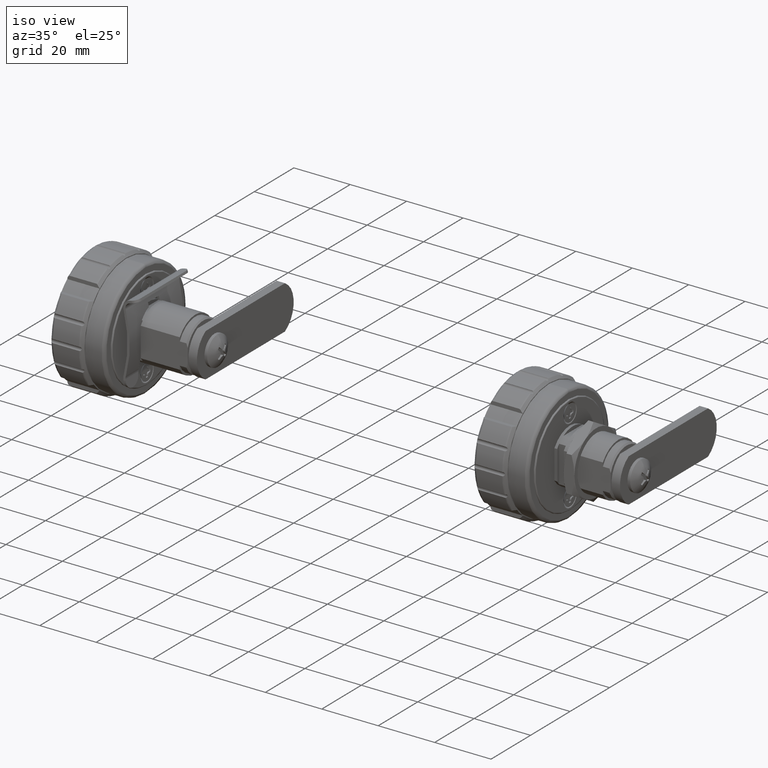
[diagram: clean part render]
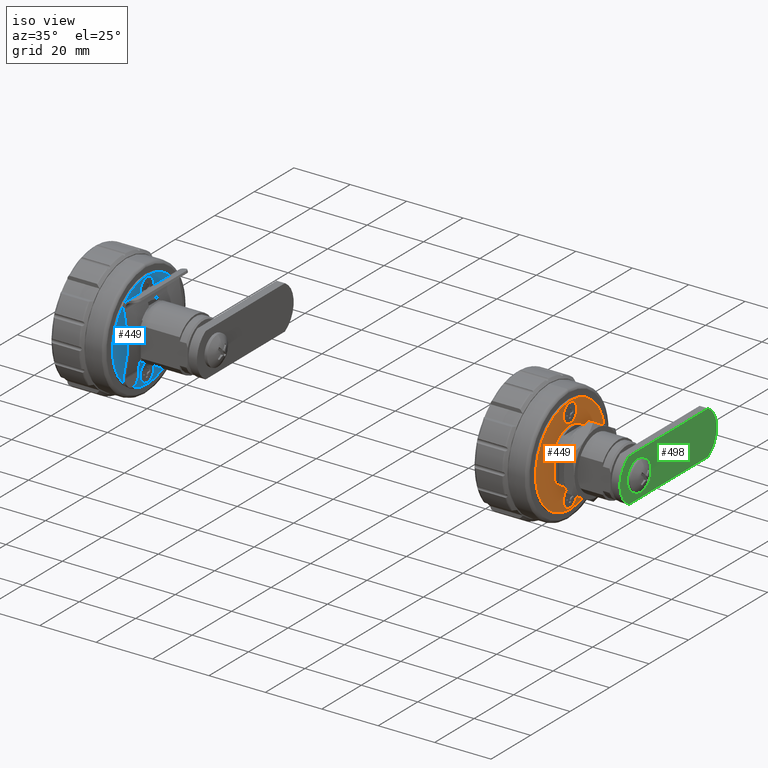
[diagram: same view with three faces highlighted in distinct colors, each labeled with its STEP entity id]
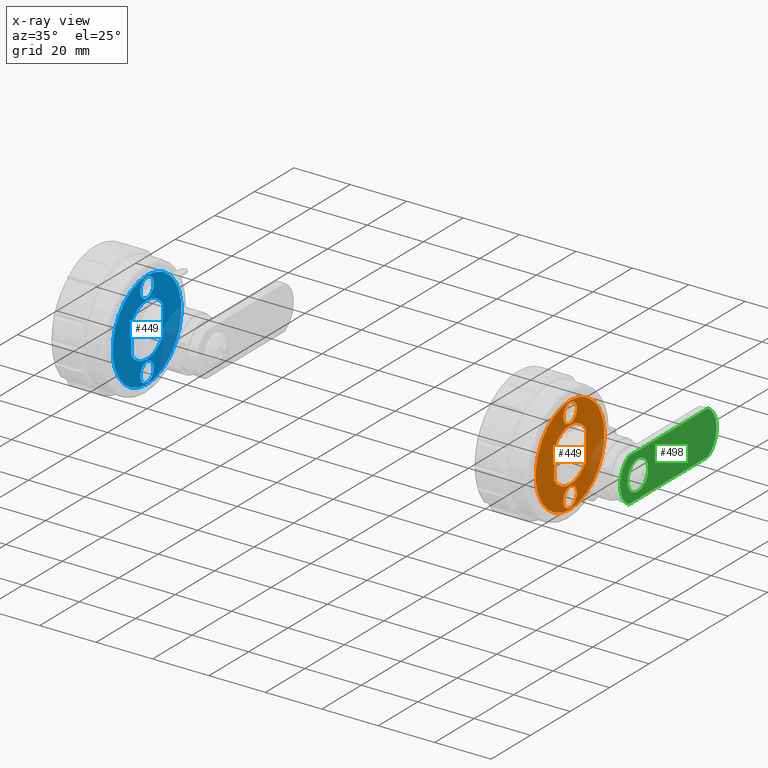
[diagram: x-ray of the same camera — body ghosted, the three highlighted faces saturated]
A machine part, iso view with three faces highlighted in distinct colors.
The next image is the same camera in x-ray (body ghosted, the three faces saturated) — at least one of them is partly hidden behind the body in this view.
Their STEP definitions:

[orange] entity #449 — the highlighted planar face has unit normal (-1, 0, 0).
#449=ADVANCED_FACE('',(#2583,#2584,#2585,#2586),#2582,.F.);
#2582=PLANE('',#5159);
#2583=FACE_OUTER_BOUND('',#5160,.T.);
#2584=FACE_BOUND('',#5161,.T.);
#2585=FACE_BOUND('',#5162,.T.);
#2586=FACE_BOUND('',#5163,.T.);
#5156=CARTESIAN_POINT('',(0.00000000000E+00,-3.62691439106E+01,2.26850000000E+01));
#5157=DIRECTION('',(-1.00000000000E+00,0.00000000000E+00,0.00000000000E+00));
#5158=DIRECTION('',(0.00000000000E+00,1.00000000000E+00,0.00000000000E+00));
#5159=AXIS2_PLACEMENT_3D('',#5156,#5157,#5158);
#5160=EDGE_LOOP('',(#7010,#7011));
#5161=EDGE_LOOP('',(#7012,#7013));
#5162=EDGE_LOOP('',(#7014,#7015,#7016,#7017));
#5163=EDGE_LOOP('',(#7018,#7019));
#7010=ORIENTED_EDGE('',*,*,#8274,.T.);
#7011=ORIENTED_EDGE('',*,*,#8275,.T.);
#7012=ORIENTED_EDGE('',*,*,#8276,.T.);
#7013=ORIENTED_EDGE('',*,*,#8277,.T.);
#7014=ORIENTED_EDGE('',*,*,#8278,.F.);
#7015=ORIENTED_EDGE('',*,*,#8279,.F.);
#7016=ORIENTED_EDGE('',*,*,#8269,.F.);
#7017=ORIENTED_EDGE('',*,*,#8280,.T.);
#7018=ORIENTED_EDGE('',*,*,#8281,.T.);
#7019=ORIENTED_EDGE('',*,*,#8282,.T.);
#8269=EDGE_CURVE('',#12266,#12273,#12274,.T.);
#8274=EDGE_CURVE('',#12306,#12307,#12308,.T.);
#8275=EDGE_CURVE('',#12307,#12306,#12314,.T.);
#8276=EDGE_CURVE('',#12320,#12321,#12322,.T.);
#8277=EDGE_CURVE('',#12321,#12320,#12328,.T.);
#8278=EDGE_CURVE('',#12334,#12335,#12336,.T.);
#8279=EDGE_CURVE('',#12273,#12334,#12342,.T.);
#8280=EDGE_CURVE('',#12266,#12335,#12348,.T.);
#8281=EDGE_CURVE('',#12354,#12355,#12356,.T.);
#8282=EDGE_CURVE('',#12355,#12354,#12362,.T.);
#12266=VERTEX_POINT('',#17529);
#12273=VERTEX_POINT('',#17533);
#12274=CIRCLE('',#17537,9.50000000000E+00);
#12306=VERTEX_POINT('',#17554);
#12307=VERTEX_POINT('',#17555);
#12308=CIRCLE('',#17559,1.74500000001E+01);
#12314=CIRCLE('',#17563,1.74500000001E+01);
#12320=VERTEX_POINT('',#17564);
#12321=VERTEX_POINT('',#17565);
#12322=CIRCLE('',#17569,3.40000000000E+00);
#12328=CIRCLE('',#17573,3.40000000000E+00);
#12334=VERTEX_POINT('',#17574);
#12335=VERTEX_POINT('',#17575);
#12336=CIRCLE('',#17579,9.50000000000E+00);
#12342=LINE('',#17580,#17581);
#12348=LINE('',#17583,#17584);
#12354=VERTEX_POINT('',#17586);
#12355=VERTEX_POINT('',#17587);
#12356=CIRCLE('',#17591,3.40000000000E+00);
#12362=CIRCLE('',#17595,3.40000000000E+00);
#17529=CARTESIAN_POINT('',(-7.39321955903E-15,7.95000000000E+00,5.20072110385E+00));
#17533=CARTESIAN_POINT('',(0.00000000000E+00,-7.95000000000E+00,5.20072110384E+00));
#17534=CARTESIAN_POINT('',(0.00000000000E+00,0.00000000000E+00,-2.84217094304E-13));
#17535=DIRECTION('',(1.00000000000E+00,0.00000000000E+00,0.00000000000E+00));
#17536=DIRECTION('',(-0.00000000000E+00,8.36842105263E-01,5.47444326721E-01));
#17537=AXIS2_PLACEMENT_3D('',#17534,#17535,#17536);
#17554=CARTESIAN_POINT('',(0.00000000000E+00,1.92557081391E-11,1.74500000000E+01));
#17555=CARTESIAN_POINT('',(0.00000000000E+00,1.92598529717E-11,-1.74500000001E+01));
#17556=CARTESIAN_POINT('',(0.00000000000E+00,1.92557081391E-11,-3.42303962952E-11));
#17557=DIRECTION('',(1.00000000000E+00,0.00000000000E+00,-0.00000000000E+00));
#17558=DIRECTION('',(0.00000000000E+00,-1.22460635382E-16,1.00000000000E+00));
#17559=AXIS2_PLACEMENT_3D('',#17556,#17557,#17558);
#17560=CARTESIAN_POINT('',(0.00000000000E+00,1.92557081391E-11,-3.42303962952E-11));
#17561=DIRECTION('',(1.00000000000E+00,0.00000000000E+00,-0.00000000000E+00));
#17562=DIRECTION('',(0.00000000000E+00,-1.22460635382E-16,1.00000000000E+00));
#17563=AXIS2_PLACEMENT_3D('',#17560,#17561,#17562);
#17564=CARTESIAN_POINT('',(0.00000000000E+00,0.00000000000E+00,-1.01000000000E+01));
#17565=CARTESIAN_POINT('',(0.00000000000E+00,0.00000000000E+00,-1.69000000000E+01));
#17566=CARTESIAN_POINT('',(0.00000000000E+00,0.00000000000E+00,-1.35000000000E+01));
#17567=DIRECTION('',(-1.00000000000E+00,0.00000000000E+00,0.00000000000E+00));
#17568=DIRECTION('',(0.00000000000E+00,-1.22460635382E-16,1.00000000000E+00));
#17569=AXIS2_PLACEMENT_3D('',#17566,#17567,#17568);
#17570=CARTESIAN_POINT('',(0.00000000000E+00,0.00000000000E+00,-1.35000000000E+01));
#17571=DIRECTION('',(-1.00000000000E+00,0.00000000000E+00,0.00000000000E+00));
#17572=DIRECTION('',(0.00000000000E+00,-1.22460635382E-16,1.00000000000E+00));
#17573=AXIS2_PLACEMENT_3D('',#17570,#17571,#17572);
#17574=CARTESIAN_POINT('',(0.00000000000E+00,-7.95000000000E+00,-5.20072110384E+00));
#17575=CARTESIAN_POINT('',(-7.39321955903E-15,7.95000000000E+00,-5.20072110385E+00));
#17576=CARTESIAN_POINT('',(0.00000000000E+00,0.00000000000E+00,-2.84217094304E-13));
#17577=DIRECTION('',(1.00000000000E+00,0.00000000000E+00,0.00000000000E+00));
#17578=DIRECTION('',(-0.00000000000E+00,-0.00000000000E+00,1.00000000000E+00));
#17579=AXIS2_PLACEMENT_3D('',#17576,#17577,#17578);
#17580=CARTESIAN_POINT('',(0.00000000000E+00,-7.95000000000E+00,5.20072110384E+00));
#17581=VECTOR('',#17582,1.04014422077E+01);
#17582=DIRECTION('',(0.00000000000E+00,0.00000000000E+00,-1.00000000000E+00));
#17583=CARTESIAN_POINT('',(-7.10542735760E-15,7.95000000000E+00,5.20072110385E+00));
#17584=VECTOR('',#17585,1.04014422077E+01);
#17585=DIRECTION('',(0.00000000000E+00,0.00000000000E+00,-1.00000000000E+00));
#17586=CARTESIAN_POINT('',(0.00000000000E+00,3.85130694968E-11,1.68999999999E+01));
#17587=CARTESIAN_POINT('',(0.00000000000E+00,3.85131926350E-11,1.00999999999E+01));
#17588=CARTESIAN_POINT('',(0.00000000000E+00,3.85130694968E-11,1.34999999999E+01));
#17589=DIRECTION('',(-1.00000000000E+00,0.00000000000E+00,0.00000000000E+00));
#17590=DIRECTION('',(0.00000000000E+00,-1.22460635382E-16,1.00000000000E+00));
#17591=AXIS2_PLACEMENT_3D('',#17588,#17589,#17590);
#17592=CARTESIAN_POINT('',(0.00000000000E+00,3.85130694968E-11,1.34999999999E+01));
#17593=DIRECTION('',(-1.00000000000E+00,0.00000000000E+00,0.00000000000E+00));
#17594=DIRECTION('',(0.00000000000E+00,-1.22460635382E-16,1.00000000000E+00));
#17595=AXIS2_PLACEMENT_3D('',#17592,#17593,#17594);

[blue] entity #449 — the highlighted planar face has unit normal (-1, 0, 0).
#449=ADVANCED_FACE('',(#2583,#2584,#2585,#2586),#2582,.F.);
#2582=PLANE('',#5159);
#2583=FACE_OUTER_BOUND('',#5160,.T.);
#2584=FACE_BOUND('',#5161,.T.);
#2585=FACE_BOUND('',#5162,.T.);
#2586=FACE_BOUND('',#5163,.T.);
#5156=CARTESIAN_POINT('',(0.00000000000E+00,-3.62691439106E+01,2.26850000000E+01));
#5157=DIRECTION('',(-1.00000000000E+00,0.00000000000E+00,0.00000000000E+00));
#5158=DIRECTION('',(0.00000000000E+00,1.00000000000E+00,0.00000000000E+00));
#5159=AXIS2_PLACEMENT_3D('',#5156,#5157,#5158);
#5160=EDGE_LOOP('',(#7010,#7011));
#5161=EDGE_LOOP('',(#7012,#7013));
#5162=EDGE_LOOP('',(#7014,#7015,#7016,#7017));
#5163=EDGE_LOOP('',(#7018,#7019));
#7010=ORIENTED_EDGE('',*,*,#8274,.T.);
#7011=ORIENTED_EDGE('',*,*,#8275,.T.);
#7012=ORIENTED_EDGE('',*,*,#8276,.T.);
#7013=ORIENTED_EDGE('',*,*,#8277,.T.);
#7014=ORIENTED_EDGE('',*,*,#8278,.F.);
#7015=ORIENTED_EDGE('',*,*,#8279,.F.);
#7016=ORIENTED_EDGE('',*,*,#8269,.F.);
#7017=ORIENTED_EDGE('',*,*,#8280,.T.);
#7018=ORIENTED_EDGE('',*,*,#8281,.T.);
#7019=ORIENTED_EDGE('',*,*,#8282,.T.);
#8269=EDGE_CURVE('',#12266,#12273,#12274,.T.);
#8274=EDGE_CURVE('',#12306,#12307,#12308,.T.);
#8275=EDGE_CURVE('',#12307,#12306,#12314,.T.);
#8276=EDGE_CURVE('',#12320,#12321,#12322,.T.);
#8277=EDGE_CURVE('',#12321,#12320,#12328,.T.);
#8278=EDGE_CURVE('',#12334,#12335,#12336,.T.);
#8279=EDGE_CURVE('',#12273,#12334,#12342,.T.);
#8280=EDGE_CURVE('',#12266,#12335,#12348,.T.);
#8281=EDGE_CURVE('',#12354,#12355,#12356,.T.);
#8282=EDGE_CURVE('',#12355,#12354,#12362,.T.);
#12266=VERTEX_POINT('',#17529);
#12273=VERTEX_POINT('',#17533);
#12274=CIRCLE('',#17537,9.50000000000E+00);
#12306=VERTEX_POINT('',#17554);
#12307=VERTEX_POINT('',#17555);
#12308=CIRCLE('',#17559,1.74500000001E+01);
#12314=CIRCLE('',#17563,1.74500000001E+01);
#12320=VERTEX_POINT('',#17564);
#12321=VERTEX_POINT('',#17565);
#12322=CIRCLE('',#17569,3.40000000000E+00);
#12328=CIRCLE('',#17573,3.40000000000E+00);
#12334=VERTEX_POINT('',#17574);
#12335=VERTEX_POINT('',#17575);
#12336=CIRCLE('',#17579,9.50000000000E+00);
#12342=LINE('',#17580,#17581);
#12348=LINE('',#17583,#17584);
#12354=VERTEX_POINT('',#17586);
#12355=VERTEX_POINT('',#17587);
#12356=CIRCLE('',#17591,3.40000000000E+00);
#12362=CIRCLE('',#17595,3.40000000000E+00);
#17529=CARTESIAN_POINT('',(-7.39321955903E-15,7.95000000000E+00,5.20072110385E+00));
#17533=CARTESIAN_POINT('',(0.00000000000E+00,-7.95000000000E+00,5.20072110384E+00));
#17534=CARTESIAN_POINT('',(0.00000000000E+00,0.00000000000E+00,-2.84217094304E-13));
#17535=DIRECTION('',(1.00000000000E+00,0.00000000000E+00,0.00000000000E+00));
#17536=DIRECTION('',(-0.00000000000E+00,8.36842105263E-01,5.47444326721E-01));
#17537=AXIS2_PLACEMENT_3D('',#17534,#17535,#17536);
#17554=CARTESIAN_POINT('',(0.00000000000E+00,1.92557081391E-11,1.74500000000E+01));
#17555=CARTESIAN_POINT('',(0.00000000000E+00,1.92598529717E-11,-1.74500000001E+01));
#17556=CARTESIAN_POINT('',(0.00000000000E+00,1.92557081391E-11,-3.42303962952E-11));
#17557=DIRECTION('',(1.00000000000E+00,0.00000000000E+00,-0.00000000000E+00));
#17558=DIRECTION('',(0.00000000000E+00,-1.22460635382E-16,1.00000000000E+00));
#17559=AXIS2_PLACEMENT_3D('',#17556,#17557,#17558);
#17560=CARTESIAN_POINT('',(0.00000000000E+00,1.92557081391E-11,-3.42303962952E-11));
#17561=DIRECTION('',(1.00000000000E+00,0.00000000000E+00,-0.00000000000E+00));
#17562=DIRECTION('',(0.00000000000E+00,-1.22460635382E-16,1.00000000000E+00));
#17563=AXIS2_PLACEMENT_3D('',#17560,#17561,#17562);
#17564=CARTESIAN_POINT('',(0.00000000000E+00,0.00000000000E+00,-1.01000000000E+01));
#17565=CARTESIAN_POINT('',(0.00000000000E+00,0.00000000000E+00,-1.69000000000E+01));
#17566=CARTESIAN_POINT('',(0.00000000000E+00,0.00000000000E+00,-1.35000000000E+01));
#17567=DIRECTION('',(-1.00000000000E+00,0.00000000000E+00,0.00000000000E+00));
#17568=DIRECTION('',(0.00000000000E+00,-1.22460635382E-16,1.00000000000E+00));
#17569=AXIS2_PLACEMENT_3D('',#17566,#17567,#17568);
#17570=CARTESIAN_POINT('',(0.00000000000E+00,0.00000000000E+00,-1.35000000000E+01));
#17571=DIRECTION('',(-1.00000000000E+00,0.00000000000E+00,0.00000000000E+00));
#17572=DIRECTION('',(0.00000000000E+00,-1.22460635382E-16,1.00000000000E+00));
#17573=AXIS2_PLACEMENT_3D('',#17570,#17571,#17572);
#17574=CARTESIAN_POINT('',(0.00000000000E+00,-7.95000000000E+00,-5.20072110384E+00));
#17575=CARTESIAN_POINT('',(-7.39321955903E-15,7.95000000000E+00,-5.20072110385E+00));
#17576=CARTESIAN_POINT('',(0.00000000000E+00,0.00000000000E+00,-2.84217094304E-13));
#17577=DIRECTION('',(1.00000000000E+00,0.00000000000E+00,0.00000000000E+00));
#17578=DIRECTION('',(-0.00000000000E+00,-0.00000000000E+00,1.00000000000E+00));
#17579=AXIS2_PLACEMENT_3D('',#17576,#17577,#17578);
#17580=CARTESIAN_POINT('',(0.00000000000E+00,-7.95000000000E+00,5.20072110384E+00));
#17581=VECTOR('',#17582,1.04014422077E+01);
#17582=DIRECTION('',(0.00000000000E+00,0.00000000000E+00,-1.00000000000E+00));
#17583=CARTESIAN_POINT('',(-7.10542735760E-15,7.95000000000E+00,5.20072110385E+00));
#17584=VECTOR('',#17585,1.04014422077E+01);
#17585=DIRECTION('',(0.00000000000E+00,0.00000000000E+00,-1.00000000000E+00));
#17586=CARTESIAN_POINT('',(0.00000000000E+00,3.85130694968E-11,1.68999999999E+01));
#17587=CARTESIAN_POINT('',(0.00000000000E+00,3.85131926350E-11,1.00999999999E+01));
#17588=CARTESIAN_POINT('',(0.00000000000E+00,3.85130694968E-11,1.34999999999E+01));
#17589=DIRECTION('',(-1.00000000000E+00,0.00000000000E+00,0.00000000000E+00));
#17590=DIRECTION('',(0.00000000000E+00,-1.22460635382E-16,1.00000000000E+00));
#17591=AXIS2_PLACEMENT_3D('',#17588,#17589,#17590);
#17592=CARTESIAN_POINT('',(0.00000000000E+00,3.85130694968E-11,1.34999999999E+01));
#17593=DIRECTION('',(-1.00000000000E+00,0.00000000000E+00,0.00000000000E+00));
#17594=DIRECTION('',(0.00000000000E+00,-1.22460635382E-16,1.00000000000E+00));
#17595=AXIS2_PLACEMENT_3D('',#17592,#17593,#17594);

[green] entity #498 — the highlighted planar face has unit normal (1, 0, 0).
#498=ADVANCED_FACE('',(#3080,#3081),#3079,.T.);
#3079=PLANE('',#5417);
#3080=FACE_OUTER_BOUND('',#5418,.T.);
#3081=FACE_BOUND('',#5419,.T.);
#5414=CARTESIAN_POINT('',(2.40000015795E+01,-2.43424132427E+01,-9.30000000696E+00));
#5415=DIRECTION('',(1.00000000000E+00,0.00000000000E+00,0.00000000000E+00));
#5416=DIRECTION('',(0.00000000000E+00,1.00000000000E+00,0.00000000000E+00));
#5417=AXIS2_PLACEMENT_3D('',#5414,#5415,#5416);
#5418=EDGE_LOOP('',(#7280,#7281,#7282,#7283));
#5419=EDGE_LOOP('',(#7284,#7285));
#7280=ORIENTED_EDGE('',*,*,#8430,.F.);
#7281=ORIENTED_EDGE('',*,*,#8431,.T.);
#7282=ORIENTED_EDGE('',*,*,#8432,.F.);
#7283=ORIENTED_EDGE('',*,*,#8433,.T.);
#7284=ORIENTED_EDGE('',*,*,#8434,.T.);
#7285=ORIENTED_EDGE('',*,*,#8435,.T.);
#8430=EDGE_CURVE('',#13350,#13351,#13352,.T.);
#8431=EDGE_CURVE('',#13350,#13358,#13359,.T.);
#8432=EDGE_CURVE('',#13365,#13358,#13366,.T.);
#8433=EDGE_CURVE('',#13365,#13351,#13372,.T.);
#8434=EDGE_CURVE('',#13378,#13379,#13380,.T.);
#8435=EDGE_CURVE('',#13379,#13378,#13386,.T.);
#13350=VERTEX_POINT('',#18171);
#13351=VERTEX_POINT('',#18172);
#13352=LINE('',#18173,#18174);
#13358=VERTEX_POINT('',#18176);
#13359=CIRCLE('',#18180,9.00000000000E+00);
#13365=VERTEX_POINT('',#18181);
#13366=LINE('',#18182,#18183);
#13372=CIRCLE('',#18188,9.00000000000E+00);
#13378=VERTEX_POINT('',#18189);
#13379=VERTEX_POINT('',#18190);
#13380=CIRCLE('',#18194,5.25000000000E+00);
#13386=CIRCLE('',#18198,5.25000000000E+00);
#18171=CARTESIAN_POINT('',(2.40000015795E+01,-4.57575130443E+00,7.75000000000E+00));
#18172=CARTESIAN_POINT('',(2.40000015795E+01,3.55757513044E+01,7.75000000000E+00));
#18173=CARTESIAN_POINT('',(2.40000015795E+01,-4.57575130443E+00,7.74999987333E+00));
#18174=VECTOR('',#18175,4.01515026089E+01);
#18175=DIRECTION('',(0.00000000000E+00,1.00000000000E+00,3.15483537874E-09));
#18176=CARTESIAN_POINT('',(2.40000015795E+01,-4.57575121520E+00,-7.74999987335E+00));
#18177=CARTESIAN_POINT('',(2.40000015795E+01,1.13686837722E-13,-2.84217094304E-13));
#18178=DIRECTION('',(1.00000000000E+00,0.00000000000E+00,0.00000000000E+00));
#18179=DIRECTION('',(-0.00000000000E+00,-0.00000000000E+00,1.00000000000E+00));
#18180=AXIS2_PLACEMENT_3D('',#18177,#18178,#18179);
#18181=CARTESIAN_POINT('',(2.40000015795E+01,3.55757513044E+01,-7.75000000000E+00));
#18182=CARTESIAN_POINT('',(2.40000015795E+01,3.55757513044E+01,-7.75000000000E+00));
#18183=VECTOR('',#18184,4.01515025196E+01);
#18184=DIRECTION('',(0.00000000000E+00,-1.00000000000E+00,3.15427619716E-09));
#18185=CARTESIAN_POINT('',(2.40000015795E+01,3.10000000000E+01,-2.84217094304E-13));
#18186=DIRECTION('',(1.00000000000E+00,0.00000000000E+00,0.00000000000E+00));
#18187=DIRECTION('',(-0.00000000000E+00,-0.00000000000E+00,1.00000000000E+00));
#18188=AXIS2_PLACEMENT_3D('',#18185,#18186,#18187);
#18189=CARTESIAN_POINT('',(2.40000015795E+01,0.00000000000E+00,5.25000000000E+00));
#18190=CARTESIAN_POINT('',(2.40000015795E+01,2.96059473233E-16,-5.25000000000E+00));
#18191=CARTESIAN_POINT('',(2.40000015795E+01,0.00000000000E+00,0.00000000000E+00));
#18192=DIRECTION('',(-1.00000000000E+00,0.00000000000E+00,0.00000000000E+00));
#18193=DIRECTION('',(0.00000000000E+00,-1.22460635382E-16,1.00000000000E+00));
#18194=AXIS2_PLACEMENT_3D('',#18191,#18192,#18193);
#18195=CARTESIAN_POINT('',(2.40000015795E+01,0.00000000000E+00,0.00000000000E+00));
#18196=DIRECTION('',(-1.00000000000E+00,0.00000000000E+00,0.00000000000E+00));
#18197=DIRECTION('',(0.00000000000E+00,-1.22460635382E-16,1.00000000000E+00));
#18198=AXIS2_PLACEMENT_3D('',#18195,#18196,#18197);